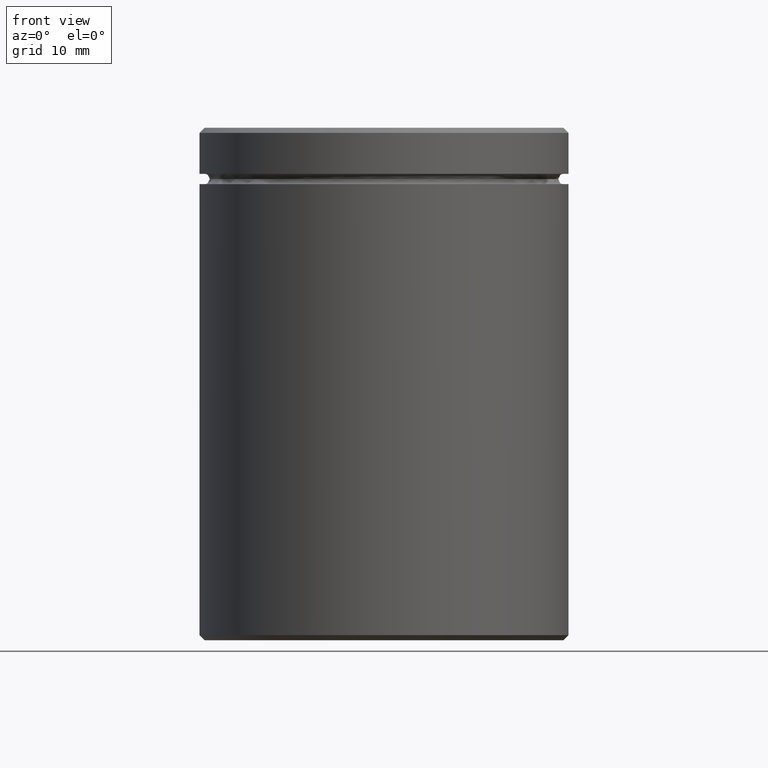
[diagram: clean part render]
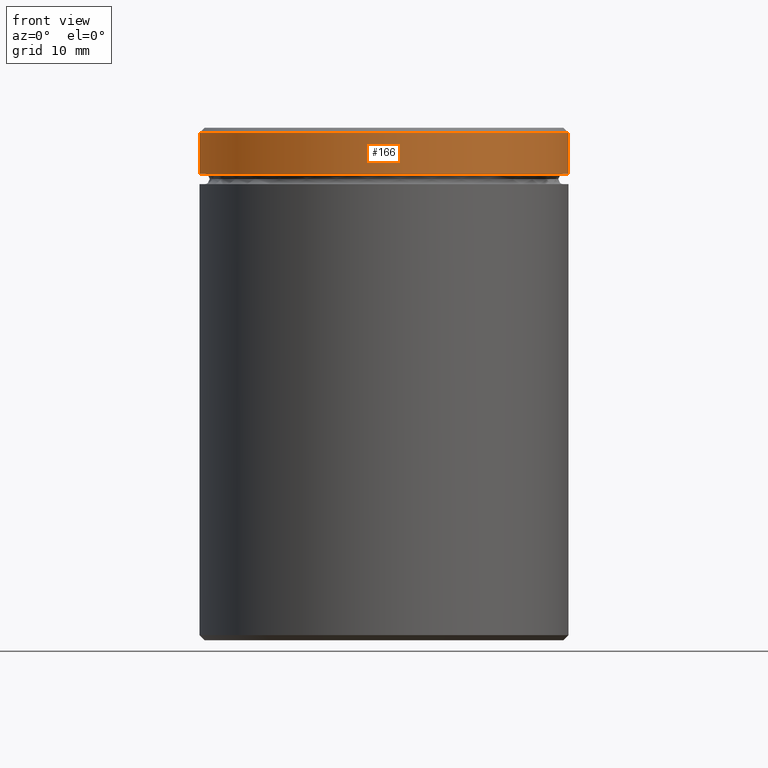
[diagram: same view with one face highlighted and labeled with its STEP entity id]
A machine part, front view. The second image highlights one B-rep face of the part: STEP entity #166.
In plain terms, the highlighted cylindrical surface (partial cylindrical patch) has radius 18 mm, axis along (-0, -0, 1).
Its self-contained STEP definition (entity closure, byte-faithful):
#13 = LINE ( 'NONE', #500, #28 ) ;
#16 = AXIS2_PLACEMENT_3D ( 'NONE', #165, #111, #74 ) ;
#28 = VECTOR ( 'NONE', #153, 1000.000000000000000 ) ;
#72 = DIRECTION ( 'NONE',  ( 1.000000000000000000, 0.000000000000000000, 0.000000000000000000 ) ) ;
#74 = DIRECTION ( 'NONE',  ( 1.000000000000000000, 0.000000000000000000, 0.000000000000000000 ) ) ;
#111 = DIRECTION ( 'NONE',  ( -0.000000000000000000, -0.000000000000000000, 1.000000000000000000 ) ) ;
#120 = FACE_OUTER_BOUND ( 'NONE', #450, .T. ) ;
#135 = VERTEX_POINT ( 'NONE', #370 ) ;
#153 = DIRECTION ( 'NONE',  ( -0.000000000000000000, -0.000000000000000000, 1.000000000000000000 ) ) ;
#161 = DIRECTION ( 'NONE',  ( 0.000000000000000000, 0.000000000000000000, -1.000000000000000000 ) ) ;
#165 = CARTESIAN_POINT ( 'NONE',  ( 0.000000000000000000, 0.000000000000000000, -4.500000000000000888 ) ) ;
#166 = ADVANCED_FACE ( 'NONE', ( #120 ), #170, .T. ) ;
#170 = CYLINDRICAL_SURFACE ( 'NONE', #453, 18.00000000000000000 ) ;
#205 = ORIENTED_EDGE ( 'NONE', *, *, #314, .T. ) ;
#219 = EDGE_CURVE ( 'NONE', #466, #309, #13, .T. ) ;
#257 = CARTESIAN_POINT ( 'NONE',  ( -18.00000000000000000, 2.204364238465235428E-15, -4.500000000000000888 ) ) ;
#297 = CARTESIAN_POINT ( 'NONE',  ( 0.000000000000000000, 0.000000000000000000, -0.5000000000000108802 ) ) ;
#309 = VERTEX_POINT ( 'NONE', #504 ) ;
#314 = EDGE_CURVE ( 'NONE', #520, #135, #324, .T. ) ;
#324 = LINE ( 'NONE', #409, #355 ) ;
#355 = VECTOR ( 'NONE', #369, 1000.000000000000000 ) ;
#360 = EDGE_CURVE ( 'NONE', #466, #520, #479, .T. ) ;
#369 = DIRECTION ( 'NONE',  ( -0.000000000000000000, -0.000000000000000000, 1.000000000000000000 ) ) ;
#370 = CARTESIAN_POINT ( 'NONE',  ( 18.00000000000000000, 0.000000000000000000, -0.5000000000000108802 ) ) ;
#376 = CIRCLE ( 'NONE', #447, 18.00000000000000000 ) ;
#387 = EDGE_CURVE ( 'NONE', #135, #309, #376, .T. ) ;
#409 = CARTESIAN_POINT ( 'NONE',  ( 18.00000000000000000, 0.000000000000000000, 0.000000000000000000 ) ) ;
#447 = AXIS2_PLACEMENT_3D ( 'NONE', #297, #161, #72 ) ;
#450 = EDGE_LOOP ( 'NONE', ( #492, #551, #205, #457 ) ) ;
#453 = AXIS2_PLACEMENT_3D ( 'NONE', #503, #558, #477 ) ;
#457 = ORIENTED_EDGE ( 'NONE', *, *, #387, .T. ) ;
#466 = VERTEX_POINT ( 'NONE', #257 ) ;
#477 = DIRECTION ( 'NONE',  ( 1.000000000000000000, 0.000000000000000000, 0.000000000000000000 ) ) ;
#479 = CIRCLE ( 'NONE', #16, 18.00000000000000000 ) ;
#492 = ORIENTED_EDGE ( 'NONE', *, *, #219, .F. ) ;
#500 = CARTESIAN_POINT ( 'NONE',  ( -18.00000000000000000, 2.204364238465235428E-15, 0.000000000000000000 ) ) ;
#503 = CARTESIAN_POINT ( 'NONE',  ( 0.000000000000000000, 0.000000000000000000, 0.000000000000000000 ) ) ;
#504 = CARTESIAN_POINT ( 'NONE',  ( -18.00000000000000000, 2.204364238465235428E-15, -0.5000000000000108802 ) ) ;
#520 = VERTEX_POINT ( 'NONE', #567 ) ;
#551 = ORIENTED_EDGE ( 'NONE', *, *, #360, .T. ) ;
#558 = DIRECTION ( 'NONE',  ( -0.000000000000000000, -0.000000000000000000, 1.000000000000000000 ) ) ;
#567 = CARTESIAN_POINT ( 'NONE',  ( 18.00000000000000000, 0.000000000000000000, -4.500000000000000888 ) ) ;